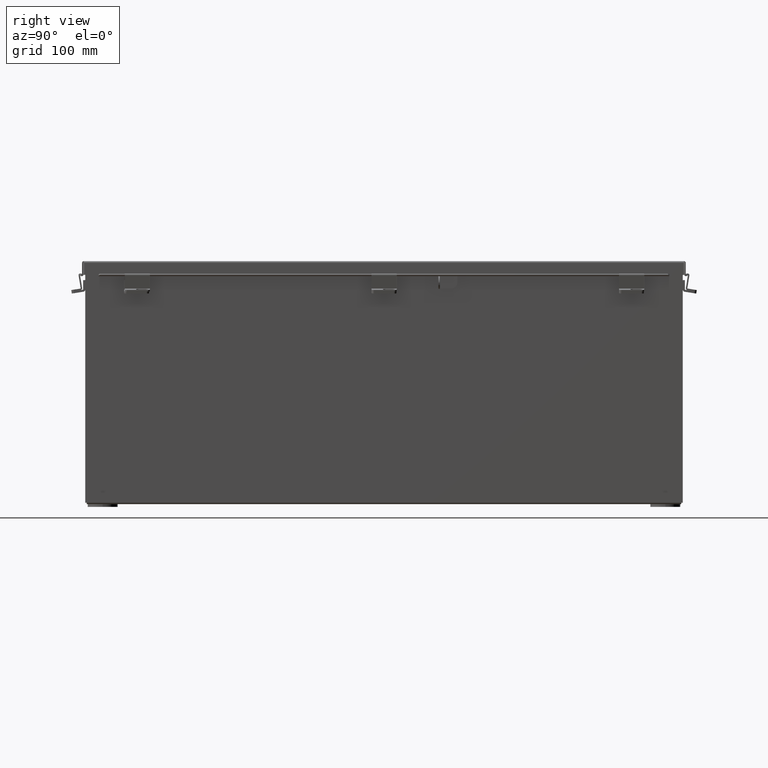
[diagram: clean part render]
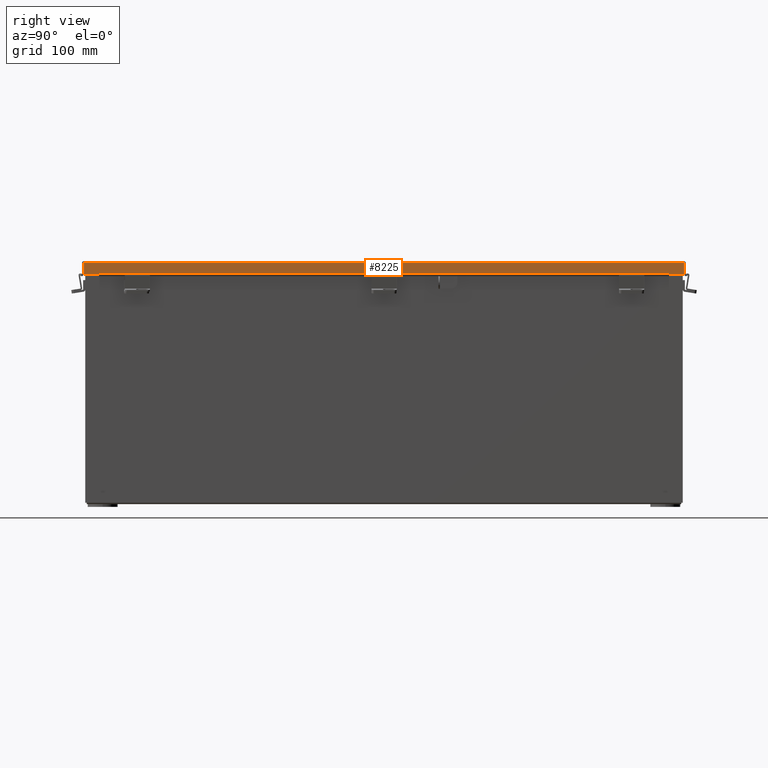
[diagram: same view with one face highlighted and labeled with its STEP entity id]
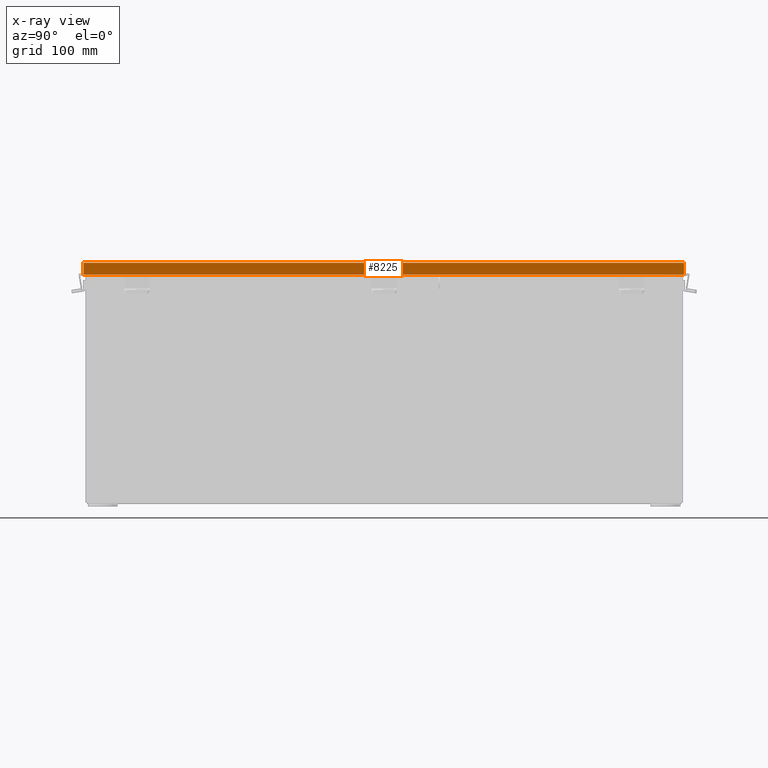
[diagram: x-ray of the same camera — body ghosted, the highlighted face saturated]
A machine part, right view. The second image highlights one B-rep face of the part: STEP entity #8225.
The next image is the same camera in x-ray: the body ghosted, the highlighted face saturated — about 0% of this face is hidden behind the body in this view.
In plain terms, the highlighted planar face has unit normal (-1, 0, -0).
Its self-contained STEP definition (entity closure, byte-faithful):
#734 = LINE ( 'NONE', #1575, #15508 ) ;
#1468 = DIRECTION ( 'NONE',  ( 2.172900982414370600E-030, 1.000000000000000000, 6.779273404243070200E-030 ) ) ;
#1472 = ORIENTED_EDGE ( 'NONE', *, *, #24858, .F. ) ;
#1575 = CARTESIAN_POINT ( 'NONE',  ( -6.156250000000000900, 0.0000000000000000000, 0.6123000000000005100 ) ) ;
#1753 = VERTEX_POINT ( 'NONE', #1876 ) ;
#1876 = CARTESIAN_POINT ( 'NONE',  ( -6.156249999999999100, 15.07447893218813400, 0.01300000000000010700 ) ) ;
#2274 = FACE_OUTER_BOUND ( 'NONE', #6479, .T. ) ;
#2514 = VECTOR ( 'NONE', #21534, 39.37007874015748100 ) ;
#2863 = DIRECTION ( 'NONE',  ( 2.002070636769426600E-030, 1.000000000000000000, 3.604912816382386200E-017 ) ) ;
#3202 = LINE ( 'NONE', #24032, #23249 ) ;
#3482 = CARTESIAN_POINT ( 'NONE',  ( -6.156250000000000900, 14.32447893218813200, 0.5967115427318782100 ) ) ;
#3971 = ORIENTED_EDGE ( 'NONE', *, *, #11515, .F. ) ;
#4083 = CARTESIAN_POINT ( 'NONE',  ( -6.156250000000003600, 14.32447893218813400, 0.6123000000000005100 ) ) ;
#4402 = EDGE_CURVE ( 'NONE', #12143, #8953, #13782, .T. ) ;
#4962 = LINE ( 'NONE', #13394, #14992 ) ;
#4981 = DIRECTION ( 'NONE',  ( 1.000000000000000000, 2.152072069201820400E-030, 3.569293475308526100E-015 ) ) ;
#5256 = CARTESIAN_POINT ( 'NONE',  ( -6.156250000000000000, -14.32447893218813400, 0.5967115427318782100 ) ) ;
#6260 = CARTESIAN_POINT ( 'NONE',  ( -6.156249999999999100, -15.07447893218813400, 0.01300000000000010700 ) ) ;
#6479 = EDGE_LOOP ( 'NONE', ( #12196, #17201, #10811, #3971, #9165, #16683, #1472, #13934 ) ) ;
#6601 = VECTOR ( 'NONE', #7294, 39.37007874015748100 ) ;
#7294 = DIRECTION ( 'NONE',  ( -1.401985044023989700E-013, 6.914858872327931600E-030, 1.000000000000000000 ) ) ;
#7326 = VERTEX_POINT ( 'NONE', #8604 ) ;
#8083 = VECTOR ( 'NONE', #10524, 39.37007874015748100 ) ;
#8225 = ADVANCED_FACE ( 'NONE', ( #2274 ), #17825, .F. ) ;
#8375 = EDGE_CURVE ( 'NONE', #8892, #7326, #3202, .T. ) ;
#8604 = CARTESIAN_POINT ( 'NONE',  ( -6.156250000000000900, -15.07447893218813400, 0.6123000000000005100 ) ) ;
#8636 = CARTESIAN_POINT ( 'NONE',  ( -6.156250000000000900, 15.07447893218813400, 0.6123000000000005100 ) ) ;
#8892 = VERTEX_POINT ( 'NONE', #6260 ) ;
#8953 = VERTEX_POINT ( 'NONE', #8636 ) ;
#9165 = ORIENTED_EDGE ( 'NONE', *, *, #8375, .T. ) ;
#9606 = DIRECTION ( 'NONE',  ( 3.569293475308526100E-015, -6.779273404243070200E-030, -1.000000000000000000 ) ) ;
#10524 = DIRECTION ( 'NONE',  ( -2.172900982414370600E-030, -1.000000000000000000, -6.779273404243070200E-030 ) ) ;
#10699 = CARTESIAN_POINT ( 'NONE',  ( -6.156250000000000000, 14.32447893218813400, 0.5967115427318782100 ) ) ;
#10811 = ORIENTED_EDGE ( 'NONE', *, *, #15334, .F. ) ;
#10947 = LINE ( 'NONE', #4083, #20950 ) ;
#11300 = LINE ( 'NONE', #5256, #6601 ) ;
#11515 = EDGE_CURVE ( 'NONE', #8892, #1753, #4962, .T. ) ;
#11796 = VERTEX_POINT ( 'NONE', #19214 ) ;
#12143 = VERTEX_POINT ( 'NONE', #23358 ) ;
#12196 = ORIENTED_EDGE ( 'NONE', *, *, #19474, .F. ) ;
#12350 = AXIS2_PLACEMENT_3D ( 'NONE', #13372, #4981, #9606 ) ;
#12477 = EDGE_CURVE ( 'NONE', #17516, #11796, #18741, .T. ) ;
#13372 = CARTESIAN_POINT ( 'NONE',  ( -6.156249999999999100, 5.869204673888065100E-018, -2.185478394931410600E-014 ) ) ;
#13394 = CARTESIAN_POINT ( 'NONE',  ( -6.156249999999999100, 15.15625000000000000, 0.01300000000000010700 ) ) ;
#13782 = LINE ( 'NONE', #23099, #2514 ) ;
#13934 = ORIENTED_EDGE ( 'NONE', *, *, #12477, .F. ) ;
#14078 = DIRECTION ( 'NONE',  ( 2.102977566036104400E-013, -1.401985044024072500E-013, -1.000000000000000000 ) ) ;
#14269 = DIRECTION ( 'NONE',  ( -3.569293475308526100E-015, 6.779273404243070200E-030, 1.000000000000000000 ) ) ;
#14274 = VERTEX_POINT ( 'NONE', #24468 ) ;
#14992 = VECTOR ( 'NONE', #2863, 39.37007874015748100 ) ;
#15267 = EDGE_CURVE ( 'NONE', #7326, #14274, #734, .T. ) ;
#15334 = EDGE_CURVE ( 'NONE', #1753, #8953, #24901, .T. ) ;
#15508 = VECTOR ( 'NONE', #1468, 39.37007874015748100 ) ;
#16683 = ORIENTED_EDGE ( 'NONE', *, *, #15267, .T. ) ;
#17201 = ORIENTED_EDGE ( 'NONE', *, *, #4402, .T. ) ;
#17516 = VERTEX_POINT ( 'NONE', #3482 ) ;
#17825 = PLANE ( 'NONE',  #12350 ) ;
#18741 = LINE ( 'NONE', #10699, #8083 ) ;
#19214 = CARTESIAN_POINT ( 'NONE',  ( -6.156250000000000900, -14.32447893218813400, 0.5967115427318782100 ) ) ;
#19474 = EDGE_CURVE ( 'NONE', #12143, #17516, #10947, .T. ) ;
#19568 = VECTOR ( 'NONE', #21811, 39.37007874015748100 ) ;
#20950 = VECTOR ( 'NONE', #14078, 39.37007874015748100 ) ;
#21534 = DIRECTION ( 'NONE',  ( 2.172900982414370600E-030, 1.000000000000000000, 6.779273404243070200E-030 ) ) ;
#21811 = DIRECTION ( 'NONE',  ( -3.569293475308526100E-015, 6.779273404243070200E-030, 1.000000000000000000 ) ) ;
#23099 = CARTESIAN_POINT ( 'NONE',  ( -6.156250000000000900, 0.0000000000000000000, 0.6123000000000005100 ) ) ;
#23249 = VECTOR ( 'NONE', #14269, 39.37007874015748100 ) ;
#23358 = CARTESIAN_POINT ( 'NONE',  ( -6.156250000000000900, 14.32447893218813400, 0.6123000000000005100 ) ) ;
#23719 = CARTESIAN_POINT ( 'NONE',  ( -6.156249999999999100, 15.07447893218813400, 0.0000000000000000000 ) ) ;
#24032 = CARTESIAN_POINT ( 'NONE',  ( -6.156249999999999100, -15.07447893218813400, -2.185478394931410600E-014 ) ) ;
#24468 = CARTESIAN_POINT ( 'NONE',  ( -6.156250000000000900, -14.32447893218813400, 0.6123000000000005100 ) ) ;
#24858 = EDGE_CURVE ( 'NONE', #11796, #14274, #11300, .T. ) ;
#24901 = LINE ( 'NONE', #23719, #19568 ) ;